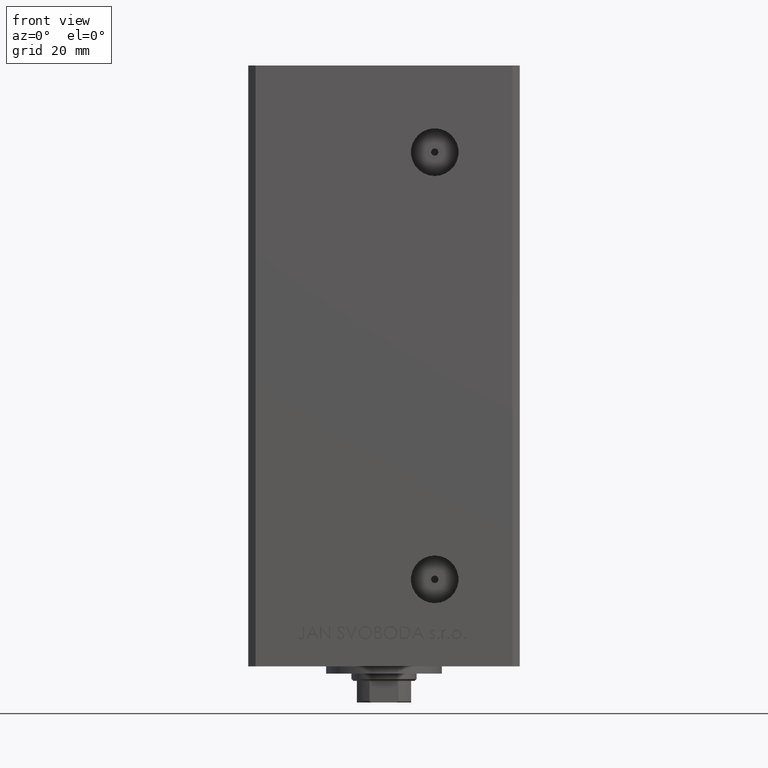
[diagram: clean part render]
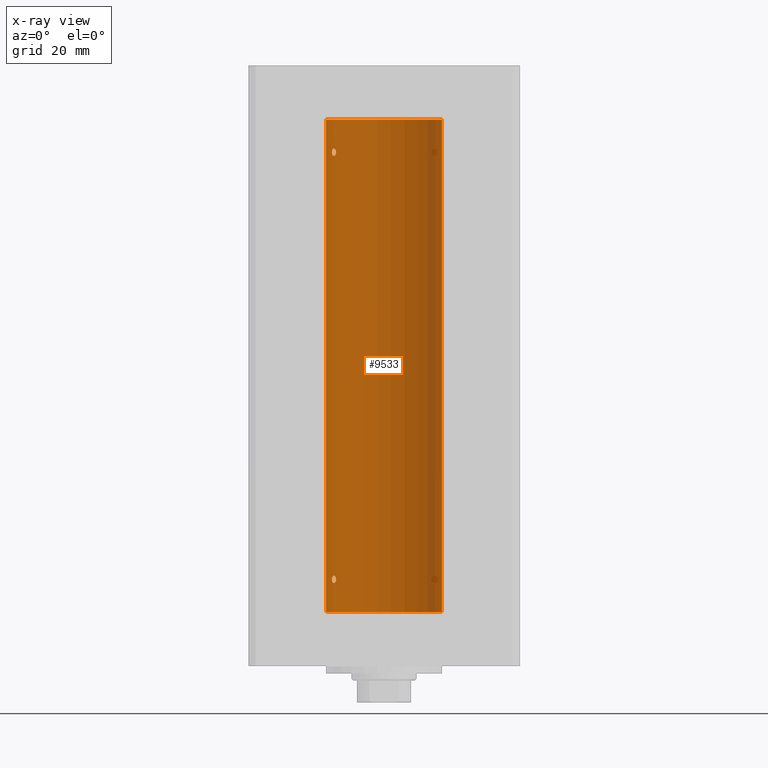
[diagram: x-ray — body ghosted, one internal face saturated and labeled with its STEP entity id]
A machine part, front view, then the same camera in x-ray: the body is ghosted and one INTERNAL B-rep face — a face not visible from any outside direction — is saturated and labeled: STEP entity #9533.
In plain terms, the highlighted cylindrical surface (partial cylindrical patch) has radius 16 mm, axis along (-0, -0, -1).
Its self-contained STEP definition (entity closure, byte-faithful):
#371 = CIRCLE ( 'NONE', #16412, 16.00000000000000000 ) ;
#917 = CARTESIAN_POINT ( 'NONE',  ( -14.31660136508400072, 7.144151923086045741, 8.464621795444484675 ) ) ;
#1159 = CARTESIAN_POINT ( 'NONE',  ( -13.23400746336173484, 8.992294519018072307, 8.857814559023026391 ) ) ;
#1265 = CARTESIAN_POINT ( 'NONE',  ( 0.000000000000000000, 0.000000000000000000, 136.0000000000000000 ) ) ;
#1403 = CARTESIAN_POINT ( 'NONE',  ( -13.22875655532296513, 8.999999999999982236, 8.929565622361650412 ) ) ;
#1469 = B_SPLINE_CURVE_WITH_KNOTS ( 'NONE', 3,
 ( #8771, #29290, #25776, #44863, #49135, #10692, #22498, #40824, #6425, #13716, #17990, #14459, #18240, #3161, #48392, #44362, #36802, #41074, #44615, #10936 ),
 .UNSPECIFIED., .F., .F.,
 ( 4, 2, 2, 2, 2, 2, 2, 2, 2, 4 ),
 ( 0.000000000000000000, 0.0004222090241339633240, 0.0008444180482679266480, 0.001266627072401889809, 0.001688836096535853296, 0.002111045120669816783, 0.002533254144803779619, 0.002955463168937742888, 0.003166567681004761603, 0.003377672193071779884 ),
 .UNSPECIFIED. ) ;
#1589 = CARTESIAN_POINT ( 'NONE',  ( 16.00000000000000000, 1.959434878635765131E-15, 136.0000000000000000 ) ) ;
#1973 = CARTESIAN_POINT ( 'NONE',  ( -13.32457971225032622, 8.857769707964648020, 127.5319996627465571 ) ) ;
#1981 = EDGE_LOOP ( 'NONE', ( #25896, #32309 ) ) ;
#2097 = CARTESIAN_POINT ( 'NONE',  ( -14.38749456993816800, 6.999999999999984013, 9.000000000000007105 ) ) ;
#2250 = CARTESIAN_POINT ( 'NONE',  ( 0.000000000000000000, 0.000000000000000000, 0.000000000000000000 ) ) ;
#3161 = CARTESIAN_POINT ( 'NONE',  ( -13.37674940693422876, 8.779234808442867077, 126.3602441571267718 ) ) ;
#3376 = CARTESIAN_POINT ( 'NONE',  ( -13.55800260393082901, 8.498809056167502263, 9.903643446210180556 ) ) ;
#3870 = CARTESIAN_POINT ( 'NONE',  ( -14.11618354197462644, 7.533333301880464461, 9.893207651933423108 ) ) ;
#4861 = CARTESIAN_POINT ( 'NONE',  ( -16.00000000000000000, 0.000000000000000000, 136.0000000000000000 ) ) ;
#4912 = CARTESIAN_POINT ( 'NONE',  ( -13.77582987033441952, 8.139210687602698613, 8.002110545841825129 ) ) ;
#4986 = CARTESIAN_POINT ( 'NONE',  ( -14.17576283486774891, 7.420212263225987925, 127.8252530343043958 ) ) ;
#5153 = CARTESIAN_POINT ( 'NONE',  ( -13.25390108270226364, 8.962947079338375644, 8.721435762358465738 ) ) ;
#5407 = CARTESIAN_POINT ( 'NONE',  ( -14.38749456993816445, 6.999999999999982236, 8.857147409635420132 ) ) ;
#6206 = EDGE_CURVE ( 'NONE', #15307, #47595, #20213, .T. ) ;
#6425 = CARTESIAN_POINT ( 'NONE',  ( -13.91838063522421010, 7.892966471903945624, 125.9981483133086897 ) ) ;
#6979 = FACE_BOUND ( 'NONE', #1981, .T. ) ;
#7227 = FACE_OUTER_BOUND ( 'NONE', #31109, .T. ) ;
#8131 = CARTESIAN_POINT ( 'NONE',  ( -13.70792461986391864, 8.256614593260295010, 9.996621535642280065 ) ) ;
#8173 = CARTESIAN_POINT ( 'NONE',  ( -16.00000000000000000, 0.000000000000000000, 0.000000000000000000 ) ) ;
#8692 = CARTESIAN_POINT ( 'NONE',  ( -14.11621438951178575, 7.533308783216997817, 8.106571071839523412 ) ) ;
#8771 = CARTESIAN_POINT ( 'NONE',  ( -14.38749456993815912, 6.999999999999998224, 127.0000000000000000 ) ) ;
#8938 = CARTESIAN_POINT ( 'NONE',  ( -13.91838063522421542, 7.892966471903923420, 7.998148313308686141 ) ) ;
#9431 = CARTESIAN_POINT ( 'NONE',  ( -13.22875655532296335, 8.999999999999982236, 9.000000000000007105 ) ) ;
#9506 = CARTESIAN_POINT ( 'NONE',  ( -14.38749456993815912, 6.999999999999998224, 127.0000000000000000 ) ) ;
#9533 = ADVANCED_FACE ( 'NONE', ( #7227, #6979, #29833 ), #45163, .F. ) ;
#10692 = CARTESIAN_POINT ( 'NONE',  ( -14.17528142432533755, 7.421143801852455368, 126.1739430735386520 ) ) ;
#10936 = CARTESIAN_POINT ( 'NONE',  ( -13.22875655532295802, 8.999999999999996447, 127.0000000000000000 ) ) ;
#12766 = CARTESIAN_POINT ( 'NONE',  ( -14.31650799088418147, 7.144337649771908438, 127.5355226273736662 ) ) ;
#13014 = CARTESIAN_POINT ( 'NONE',  ( -13.22875655532295802, 8.999999999999996447, 127.0000000000000000 ) ) ;
#13716 = CARTESIAN_POINT ( 'NONE',  ( -13.77582987033440709, 8.139210687602719929, 126.0021105458418162 ) ) ;
#14103 = B_SPLINE_CURVE_WITH_KNOTS ( 'NONE', 3,
 ( #13014, #47189, #17038, #1973, #36107, #20557, #20807, #24088, #47690, #43412, #4986, #47944, #12766, #39633, #32098, #9506 ),
 .UNSPECIFIED., .F., .F.,
 ( 4, 2, 2, 2, 2, 2, 2, 4 ),
 ( 0.003377672193071779884, 0.003799209865779855366, 0.004220747538487930849, 0.005063822883904134722, 0.005485360556612237093, 0.005906898229320339463, 0.006328435902028442701, 0.006749973574736545072 ),
 .UNSPECIFIED. ) ;
#14218 = EDGE_CURVE ( 'NONE', #25232, #32184, #25529, .T. ) ;
#14459 = CARTESIAN_POINT ( 'NONE',  ( -13.56386909142669772, 8.487613976483636691, 126.1182242979960790 ) ) ;
#15307 = VERTEX_POINT ( 'NONE', #4861 ) ;
#16223 = CARTESIAN_POINT ( 'NONE',  ( -13.37674940693423054, 8.779234808442856419, 8.360244157126787812 ) ) ;
#16412 = AXIS2_PLACEMENT_3D ( 'NONE', #2250, #17312, #28860 ) ;
#16497 = CARTESIAN_POINT ( 'NONE',  ( -13.22875655532295802, 8.999999999999996447, 127.0000000000000000 ) ) ;
#17038 = CARTESIAN_POINT ( 'NONE',  ( -13.24976519864029179, 8.969293778684573226, 127.2815352263351514 ) ) ;
#17301 = AXIS2_PLACEMENT_3D ( 'NONE', #22551, #19272, #30567 ) ;
#17312 = DIRECTION ( 'NONE',  ( -0.000000000000000000, 0.000000000000000000, 1.000000000000000000 ) ) ;
#17373 = EDGE_CURVE ( 'NONE', #32184, #25232, #25962, .T. ) ;
#17508 = VECTOR ( 'NONE', #39053, 1000.000000000000000 ) ;
#17750 = ORIENTED_EDGE ( 'NONE', *, *, #47036, .F. ) ;
#17990 = CARTESIAN_POINT ( 'NONE',  ( -13.70481462797717676, 8.258098555717509726, 126.0259974772911562 ) ) ;
#18240 = CARTESIAN_POINT ( 'NONE',  ( -13.49759407097375075, 8.592283911330223845, 126.1840991521276862 ) ) ;
#18448 = EDGE_CURVE ( 'NONE', #22346, #48737, #39748, .T. ) ;
#18494 = ORIENTED_EDGE ( 'NONE', *, *, #6206, .T. ) ;
#18693 = CARTESIAN_POINT ( 'NONE',  ( -13.91892506969883669, 7.891973478508838902, 10.00155212263245375 ) ) ;
#19272 = DIRECTION ( 'NONE',  ( -0.000000000000000000, -0.000000000000000000, -1.000000000000000000 ) ) ;
#19435 = CARTESIAN_POINT ( 'NONE',  ( -13.22875655532296335, 8.999999999999982236, 9.000000000000007105 ) ) ;
#19974 = CARTESIAN_POINT ( 'NONE',  ( -16.00000000000000000, 0.000000000000000000, 136.0000000000000000 ) ) ;
#20213 = LINE ( 'NONE', #19974, #17508 ) ;
#20238 = CARTESIAN_POINT ( 'NONE',  ( -13.26838749541401263, 8.941532915076029653, 8.656217793921380022 ) ) ;
#20557 = CARTESIAN_POINT ( 'NONE',  ( -13.55800260393081835, 8.498809056167509368, 127.9036434462101681 ) ) ;
#20734 = CARTESIAN_POINT ( 'NONE',  ( -13.32426099938365915, 8.858246960865836073, 8.468874877532975631 ) ) ;
#20807 = CARTESIAN_POINT ( 'NONE',  ( -13.70792461986390798, 8.256614593260307444, 127.9966215356423191 ) ) ;
#21093 = DIRECTION ( 'NONE',  ( 1.000000000000000000, 0.000000000000000000, 0.000000000000000000 ) ) ;
#21459 = VERTEX_POINT ( 'NONE', #33043 ) ;
#22013 = ORIENTED_EDGE ( 'NONE', *, *, #25557, .F. ) ;
#22346 = VERTEX_POINT ( 'NONE', #44881 ) ;
#22498 = CARTESIAN_POINT ( 'NONE',  ( -14.11621438951177687, 7.533308783217008475, 126.1065710718394826 ) ) ;
#22551 = CARTESIAN_POINT ( 'NONE',  ( 0.000000000000000000, 0.000000000000000000, 136.0000000000000000 ) ) ;
#23131 = EDGE_CURVE ( 'NONE', #22346, #15307, #34449, .T. ) ;
#23452 = CARTESIAN_POINT ( 'NONE',  ( -14.17576283486775779, 7.420212263225971050, 9.825253034304363808 ) ) ;
#24088 = CARTESIAN_POINT ( 'NONE',  ( -13.91892506969882071, 7.891973478508848672, 128.0015521226323472 ) ) ;
#24258 = CARTESIAN_POINT ( 'NONE',  ( -13.70481462797718386, 8.258098555717490186, 8.025997477291141990 ) ) ;
#24499 = CARTESIAN_POINT ( 'NONE',  ( -14.17528142432534288, 7.421143801852442934, 8.173943073538671555 ) ) ;
#24600 = EDGE_CURVE ( 'NONE', #27340, #21459, #14103, .T. ) ;
#24859 = AXIS2_PLACEMENT_3D ( 'NONE', #1265, #35635, #21093 ) ;
#25232 = VERTEX_POINT ( 'NONE', #2097 ) ;
#25529 = B_SPLINE_CURVE_WITH_KNOTS ( 'NONE', 3,
 ( #39075, #5407, #35286, #917, #28512, #24499, #8692, #43583, #8938, #4912, #24258, #39559, #36280, #16223, #20734, #20238, #5153, #1159, #1403, #9431 ),
 .UNSPECIFIED., .F., .F.,
 ( 4, 2, 2, 2, 2, 2, 2, 2, 2, 4 ),
 ( 0.000000000000000000, 0.0004222090241339719434, 0.0008444180482679438868, 0.001266627072401915830, 0.001688836096535887774, 0.002111045120669859717, 0.002533254144803831660, 0.002955463168937803604, 0.003166567681004789359, 0.003377672193071775547 ),
 .UNSPECIFIED. ) ;
#25557 = EDGE_CURVE ( 'NONE', #21459, #27340, #1469, .T. ) ;
#25736 = CARTESIAN_POINT ( 'NONE',  ( 16.00000000000000000, 1.959434878635765131E-15, 0.000000000000000000 ) ) ;
#25776 = CARTESIAN_POINT ( 'NONE',  ( -14.37250282441143945, 7.031013007322939323, 126.7168569960372935 ) ) ;
#25896 = ORIENTED_EDGE ( 'NONE', *, *, #14218, .F. ) ;
#25962 = B_SPLINE_CURVE_WITH_KNOTS ( 'NONE', 3,
 ( #19435, #30729, #37767, #33997, #42536, #3376, #8131, #18693, #46060, #3870, #23452, #49349, #38763, #31228, #34488, #26976 ),
 .UNSPECIFIED., .F., .F.,
 ( 4, 2, 2, 2, 2, 2, 2, 4 ),
 ( 0.003377672193071775547, 0.003799209865779873581, 0.004220747538487971615, 0.005063822883904167682, 0.005485360556612266583, 0.005906898229320366352, 0.006328435902028466120, 0.006749973574736565021 ),
 .UNSPECIFIED. ) ;
#26976 = CARTESIAN_POINT ( 'NONE',  ( -14.38749456993816800, 6.999999999999984013, 9.000000000000007105 ) ) ;
#27131 = ORIENTED_EDGE ( 'NONE', *, *, #24600, .F. ) ;
#27340 = VERTEX_POINT ( 'NONE', #16497 ) ;
#28512 = CARTESIAN_POINT ( 'NONE',  ( -14.27547848986623258, 7.226527013162171720, 8.352555730181538962 ) ) ;
#28860 = DIRECTION ( 'NONE',  ( 1.000000000000000000, 0.000000000000000000, 0.000000000000000000 ) ) ;
#29290 = CARTESIAN_POINT ( 'NONE',  ( -14.38749456993816267, 6.999999999999999112, 126.8571474096354450 ) ) ;
#29529 = VECTOR ( 'NONE', #47304, 1000.000000000000000 ) ;
#29833 = FACE_BOUND ( 'NONE', #43808, .T. ) ;
#30567 = DIRECTION ( 'NONE',  ( -1.000000000000000000, 0.000000000000000000, 0.000000000000000000 ) ) ;
#30729 = CARTESIAN_POINT ( 'NONE',  ( -13.22875655532296335, 8.999999999999978684, 9.140644760917750133 ) ) ;
#31109 = EDGE_LOOP ( 'NONE', ( #36490, #43094, #18494, #17750 ) ) ;
#31228 = CARTESIAN_POINT ( 'NONE',  ( -14.37227256866306746, 7.031482256185695334, 9.284457240976488279 ) ) ;
#32098 = CARTESIAN_POINT ( 'NONE',  ( -14.38749456993815734, 6.999999999999997335, 127.1426254415242454 ) ) ;
#32184 = VERTEX_POINT ( 'NONE', #41436 ) ;
#32309 = ORIENTED_EDGE ( 'NONE', *, *, #17373, .F. ) ;
#33043 = CARTESIAN_POINT ( 'NONE',  ( -14.38749456993815912, 6.999999999999998224, 127.0000000000000000 ) ) ;
#33997 = CARTESIAN_POINT ( 'NONE',  ( -13.32457971225033866, 8.857769707964637362, 9.531999662746560631 ) ) ;
#34449 = CIRCLE ( 'NONE', #24859, 16.00000000000000000 ) ;
#34488 = CARTESIAN_POINT ( 'NONE',  ( -14.38749456993816978, 6.999999999999985789, 9.142625441524216967 ) ) ;
#35286 = CARTESIAN_POINT ( 'NONE',  ( -14.37250282441144655, 7.031013007322923336, 8.716856996037272154 ) ) ;
#35635 = DIRECTION ( 'NONE',  ( -0.000000000000000000, 0.000000000000000000, 1.000000000000000000 ) ) ;
#36107 = CARTESIAN_POINT ( 'NONE',  ( -13.37741691572086111, 8.778212469423007036, 127.6408828602271512 ) ) ;
#36280 = CARTESIAN_POINT ( 'NONE',  ( -13.49759407097375608, 8.592283911330213186, 8.184099152127679133 ) ) ;
#36490 = ORIENTED_EDGE ( 'NONE', *, *, #18448, .F. ) ;
#36802 = CARTESIAN_POINT ( 'NONE',  ( -13.25390108270225120, 8.962947079338391632, 126.7214357623584817 ) ) ;
#37767 = CARTESIAN_POINT ( 'NONE',  ( -13.24976519864029889, 8.969293778684560792, 9.281535226335167366 ) ) ;
#38763 = CARTESIAN_POINT ( 'NONE',  ( -14.31650799088419213, 7.144337649771898668, 9.535522627373698157 ) ) ;
#39053 = DIRECTION ( 'NONE',  ( -0.000000000000000000, -0.000000000000000000, -1.000000000000000000 ) ) ;
#39075 = CARTESIAN_POINT ( 'NONE',  ( -14.38749456993816800, 6.999999999999984013, 9.000000000000007105 ) ) ;
#39559 = CARTESIAN_POINT ( 'NONE',  ( -13.56386909142670660, 8.487613976483618927, 8.118224297996086136 ) ) ;
#39633 = CARTESIAN_POINT ( 'NONE',  ( -14.37227256866306213, 7.031482256185711321, 127.2844572409764794 ) ) ;
#39748 = LINE ( 'NONE', #1589, #29529 ) ;
#40824 = CARTESIAN_POINT ( 'NONE',  ( -13.98699950016872151, 7.770591669637114229, 126.0184768166484588 ) ) ;
#41074 = CARTESIAN_POINT ( 'NONE',  ( -13.23400746336172240, 8.992294519018086518, 126.8578145590230406 ) ) ;
#41436 = CARTESIAN_POINT ( 'NONE',  ( -13.22875655532296335, 8.999999999999982236, 9.000000000000007105 ) ) ;
#42536 = CARTESIAN_POINT ( 'NONE',  ( -13.37741691572086467, 8.778212469422998154, 9.640882860227108608 ) ) ;
#43094 = ORIENTED_EDGE ( 'NONE', *, *, #23131, .T. ) ;
#43412 = CARTESIAN_POINT ( 'NONE',  ( -14.11618354197461400, 7.533333301880474231, 127.8932076519334373 ) ) ;
#43583 = CARTESIAN_POINT ( 'NONE',  ( -13.98699950016873039, 7.770591669637105348, 8.018476816648488992 ) ) ;
#43808 = EDGE_LOOP ( 'NONE', ( #22013, #27131 ) ) ;
#44362 = CARTESIAN_POINT ( 'NONE',  ( -13.26838749541400908, 8.941532915076043864, 126.6562177939213854 ) ) ;
#44615 = CARTESIAN_POINT ( 'NONE',  ( -13.22875655532295625, 8.999999999999994671, 126.9295656223616220 ) ) ;
#44863 = CARTESIAN_POINT ( 'NONE',  ( -14.31660136508398828, 7.144151923086063505, 126.4646217954444580 ) ) ;
#44881 = CARTESIAN_POINT ( 'NONE',  ( 16.00000000000000000, 1.959434878635765131E-15, 136.0000000000000000 ) ) ;
#45163 = CYLINDRICAL_SURFACE ( 'NONE', #17301, 16.00000000000000000 ) ;
#46060 = CARTESIAN_POINT ( 'NONE',  ( -13.98878315975730224, 7.767347947480332415, 9.980546143261287639 ) ) ;
#47036 = EDGE_CURVE ( 'NONE', #48737, #47595, #371, .T. ) ;
#47189 = CARTESIAN_POINT ( 'NONE',  ( -13.22875655532296157, 8.999999999999994671, 127.1406447609177661 ) ) ;
#47304 = DIRECTION ( 'NONE',  ( -0.000000000000000000, -0.000000000000000000, -1.000000000000000000 ) ) ;
#47595 = VERTEX_POINT ( 'NONE', #8173 ) ;
#47690 = CARTESIAN_POINT ( 'NONE',  ( -13.98878315975728803, 7.767347947480344850, 127.9805461432612645 ) ) ;
#47944 = CARTESIAN_POINT ( 'NONE',  ( -14.27521483392928836, 7.227035590538638310, 127.6478598706881371 ) ) ;
#48392 = CARTESIAN_POINT ( 'NONE',  ( -13.32426099938365383, 8.858246960865844954, 126.4688748775329969 ) ) ;
#48737 = VERTEX_POINT ( 'NONE', #25736 ) ;
#49135 = CARTESIAN_POINT ( 'NONE',  ( -14.27547848986622370, 7.226527013162184154, 126.3525557301815354 ) ) ;
#49349 = CARTESIAN_POINT ( 'NONE',  ( -14.27521483392929902, 7.227035590538620546, 9.647859870688199280 ) ) ;